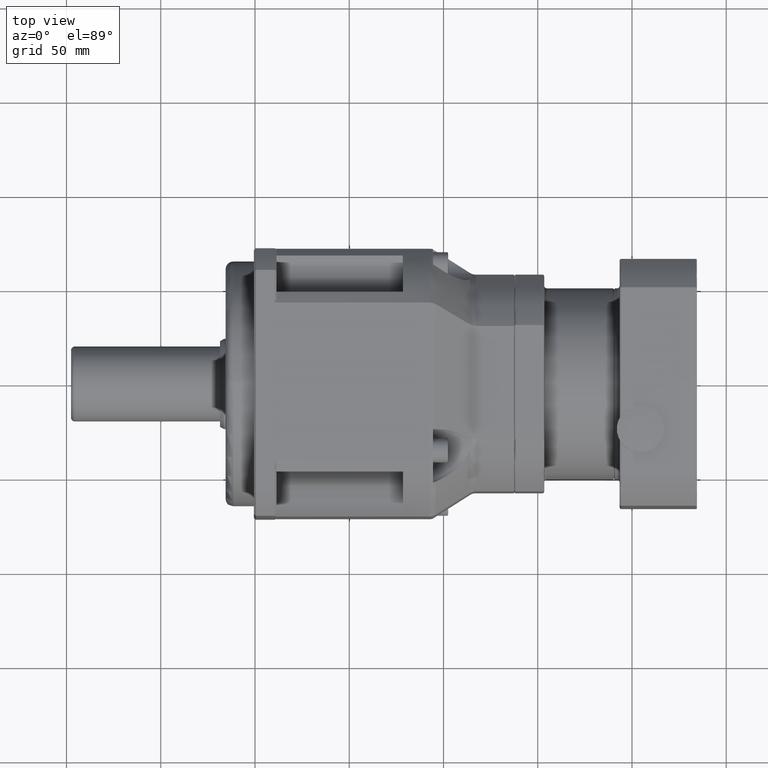
[diagram: clean part render]
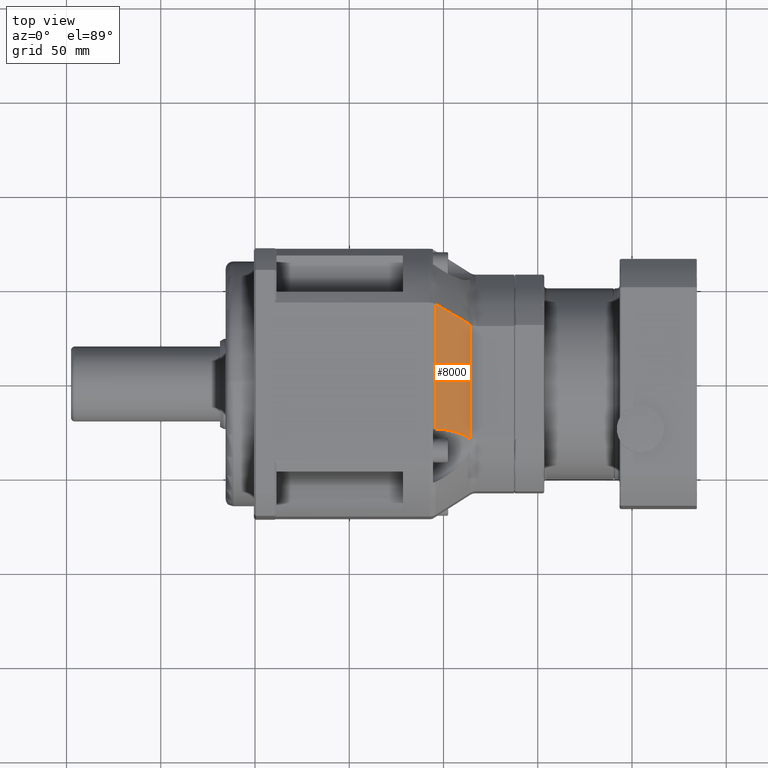
[diagram: same view with one face highlighted and labeled with its STEP entity id]
A machine part, top view. The second image highlights one B-rep face of the part: STEP entity #8000.
In plain terms, the highlighted planar face has unit normal (-0.5408, 0, -0.8412).
Its self-contained STEP definition (entity closure, byte-faithful):
#17=ELLIPSE('',#8768,27.7388616284887,15.);
#94=B_SPLINE_CURVE_WITH_KNOTS('',3,(#13199,#13200,#13201,#13202),
 .UNSPECIFIED.,.F.,.F.,(4,4),(0.,0.0208347293827138),.UNSPECIFIED.);
#151=B_SPLINE_CURVE_WITH_KNOTS('',3,(#13708,#13709,#13710,#13711),
 .UNSPECIFIED.,.F.,.F.,(4,4),(0.512041675487636,0.540788790604631),
 .UNSPECIFIED.);
#420=LINE('',#13237,#807);
#438=LINE('',#13727,#825);
#440=LINE('',#13747,#827);
#807=VECTOR('',#10259,60.6550796762109);
#825=VECTOR('',#10325,66.4247235612198);
#827=VECTOR('',#10341,24.105594712999);
#1320=PLANE('',#8773);
#2003=FACE_OUTER_BOUND('',#2700,.T.);
#2700=EDGE_LOOP('',(#6162,#6163,#6164,#6165,#6166,#6167));
#3777=VERTEX_POINT('',#13192);
#3778=VERTEX_POINT('',#13198);
#3783=VERTEX_POINT('',#13236);
#3837=VERTEX_POINT('',#13699);
#3838=VERTEX_POINT('',#13707);
#3840=VERTEX_POINT('',#13720);
#4613=EDGE_CURVE('',#3777,#3778,#94,.T.);
#4620=EDGE_CURVE('',#3778,#3783,#420,.T.);
#4697=EDGE_CURVE('',#3837,#3838,#151,.T.);
#4701=EDGE_CURVE('',#3840,#3837,#438,.T.);
#4704=EDGE_CURVE('',#3840,#3783,#17,.T.);
#4707=EDGE_CURVE('',#3838,#3777,#440,.T.);
#6162=ORIENTED_EDGE('',*,*,#4620,.F.);
#6163=ORIENTED_EDGE('',*,*,#4613,.F.);
#6164=ORIENTED_EDGE('',*,*,#4707,.F.);
#6165=ORIENTED_EDGE('',*,*,#4697,.F.);
#6166=ORIENTED_EDGE('',*,*,#4701,.F.);
#6167=ORIENTED_EDGE('',*,*,#4704,.T.);
#8000=ADVANCED_FACE('',(#2003),#1320,.F.);
#8768=AXIS2_PLACEMENT_3D('',#13740,#10329,#10330);
#8773=AXIS2_PLACEMENT_3D('',#13746,#10339,#10340);
#10259=DIRECTION('',(-2.10628591652615E-16,-1.,-9.27247409289523E-16));
#10325=DIRECTION('',(1.36175586748856E-16,1.,9.75110055299083E-16));
#10329=DIRECTION('center_axis',(-0.5407575913135,8.93879571926842E-16,-0.841178475376553));
#10330=DIRECTION('ref_axis',(0.841178475376553,3.58692605518328E-16,-0.5407575913135));
#10339=DIRECTION('center_axis',(-0.5407575913135,8.93879571926842E-16,-0.841178475376553));
#10340=DIRECTION('ref_axis',(-0.841178475376553,0.,0.5407575913135));
#10341=DIRECTION('',(0.755238106831923,-0.440335368196058,-0.485510211534809));
#13192=CARTESIAN_POINT('',(-135.954449130973,-119.725623093795,-18.6056992269875));
#13198=CARTESIAN_POINT('',(-135.794663797685,-119.806925106428,-18.708418369815));
#13199=CARTESIAN_POINT('Ctrl Pts',(-135.954449134493,-119.72562399841,-18.6057020908338));
#13200=CARTESIAN_POINT('Ctrl Pts',(-135.901999741905,-119.756205007335,
-18.6394190594282));
#13201=CARTESIAN_POINT('Ctrl Pts',(-135.848705428578,-119.783279321058,
-18.6736186575062));
#13202=CARTESIAN_POINT('Ctrl Pts',(-135.794603923064,-119.806864305492,
-18.708297902197));
#13236=CARTESIAN_POINT('',(-135.794663797685,-180.462004782638,-18.7084183698151));
#13237=CARTESIAN_POINT('',(-135.794663797685,-200.067443754725,-18.7084183698151));
#13699=CARTESIAN_POINT('',(-154.324106747987,-109.026968627141,-6.79663361604947));
#13707=CARTESIAN_POINT('',(-154.159912846076,-109.111077170262,-6.90218683870705));
#13708=CARTESIAN_POINT('Ctrl Pts',(-154.324171973426,-109.027043674957,
-6.79676160710594));
#13709=CARTESIAN_POINT('Ctrl Pts',(-154.268400615483,-109.051735122155,
-6.83250862053785));
#13710=CARTESIAN_POINT('Ctrl Pts',(-154.213631683006,-109.079756844096,
-6.86765330068013));
#13711=CARTESIAN_POINT('Ctrl Pts',(-154.159912846076,-109.111077170262,
-6.90218683870704));
#13720=CARTESIAN_POINT('',(-154.324106747987,-175.45169218836,-6.79663361604954));
#13727=CARTESIAN_POINT('',(-154.324106747987,-206.817443754725,-6.79663361604956));
#13740=CARTESIAN_POINT('Origin',(-153.223778734149,-190.435004596179,-7.50398733923113));
#13746=CARTESIAN_POINT('Origin',(-155.559385272836,-192.324882913271,-6.00252599293231));
#13747=CARTESIAN_POINT('',(-155.559385272836,-108.295126279088,-6.00252599293223));